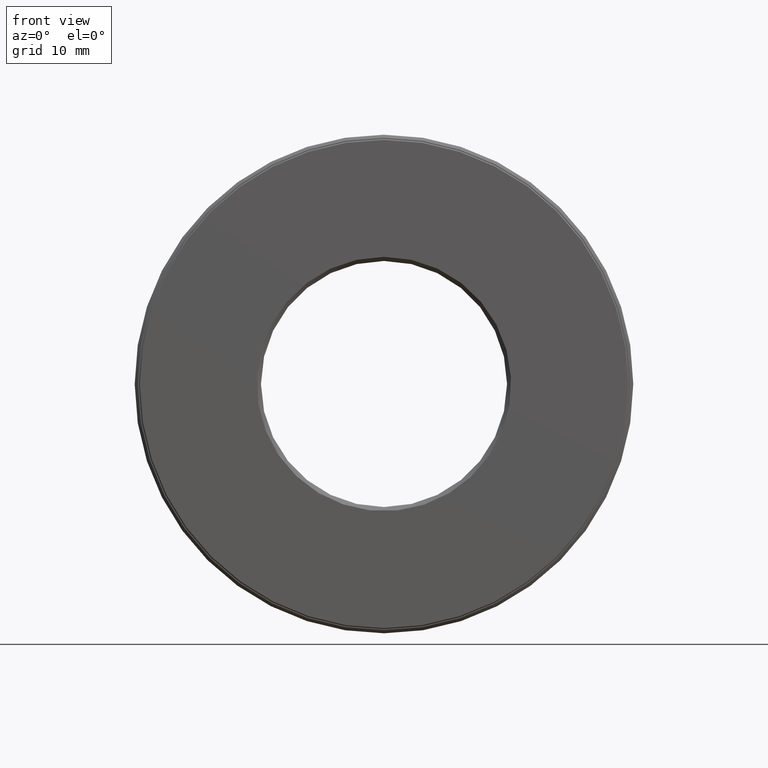
[diagram: clean part render]
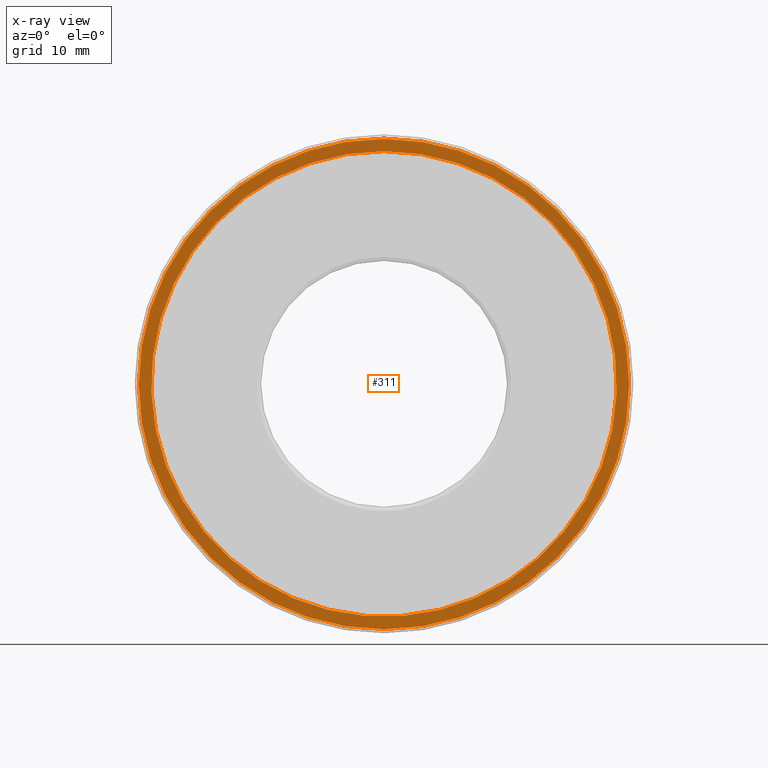
[diagram: x-ray — body ghosted, one internal face saturated and labeled with its STEP entity id]
A machine part, front view, then the same camera in x-ray: the body is ghosted and one INTERNAL B-rep face — a face not visible from any outside direction — is saturated and labeled: STEP entity #311.
In plain terms, the highlighted planar face has unit normal (-0, 1, 0).
Its self-contained STEP definition (entity closure, byte-faithful):
#1 = AXIS2_PLACEMENT_3D ( 'NONE', #40, #498, #547 ) ;
#19 = AXIS2_PLACEMENT_3D ( 'NONE', #231, #369, #315 ) ;
#40 = CARTESIAN_POINT ( 'NONE',  ( 0.0000000000000000000, 0.9024999999999999700, 0.0000000000000000000 ) ) ;
#75 = CARTESIAN_POINT ( 'NONE',  ( 0.0000000000000000000, 0.9024999999999999700, 1.183125000000000000 ) ) ;
#95 = VERTEX_POINT ( 'NONE', #75 ) ;
#116 = FACE_BOUND ( 'NONE', #375, .T. ) ;
#120 = DIRECTION ( 'NONE',  ( -0.0000000000000000000, 1.000000000000000000, -0.0000000000000000000 ) ) ;
#193 = EDGE_CURVE ( 'NONE', #458, #458, #197, .T. ) ;
#197 = CIRCLE ( 'NONE', #1, 1.123125000000000200 ) ;
#231 = CARTESIAN_POINT ( 'NONE',  ( 0.0000000000000000000, 0.9024999999999999700, 0.0000000000000000000 ) ) ;
#251 = EDGE_LOOP ( 'NONE', ( #399 ) ) ;
#286 = CARTESIAN_POINT ( 'NONE',  ( 0.0000000000000000000, 0.9024999999999999700, 0.0000000000000000000 ) ) ;
#311 = ADVANCED_FACE ( 'NONE', ( #569, #116 ), #513, .F. ) ;
#315 = DIRECTION ( 'NONE',  ( 0.0000000000000000000, 0.0000000000000000000, 1.000000000000000000 ) ) ;
#369 = DIRECTION ( 'NONE',  ( -0.0000000000000000000, 1.000000000000000000, 0.0000000000000000000 ) ) ;
#375 = EDGE_LOOP ( 'NONE', ( #545 ) ) ;
#384 = CARTESIAN_POINT ( 'NONE',  ( 0.0000000000000000000, 0.9024999999999999700, 1.123125000000000200 ) ) ;
#399 = ORIENTED_EDGE ( 'NONE', *, *, #585, .F. ) ;
#458 = VERTEX_POINT ( 'NONE', #384 ) ;
#498 = DIRECTION ( 'NONE',  ( -0.0000000000000000000, 1.000000000000000000, -0.0000000000000000000 ) ) ;
#513 = PLANE ( 'NONE',  #19 ) ;
#519 = CIRCLE ( 'NONE', #546, 1.183125000000000000 ) ;
#525 = DIRECTION ( 'NONE',  ( 0.0000000000000000000, 0.0000000000000000000, 1.000000000000000000 ) ) ;
#545 = ORIENTED_EDGE ( 'NONE', *, *, #193, .T. ) ;
#546 = AXIS2_PLACEMENT_3D ( 'NONE', #286, #120, #525 ) ;
#547 = DIRECTION ( 'NONE',  ( 0.0000000000000000000, 0.0000000000000000000, 1.000000000000000000 ) ) ;
#569 = FACE_OUTER_BOUND ( 'NONE', #251, .T. ) ;
#585 = EDGE_CURVE ( 'NONE', #95, #95, #519, .T. ) ;